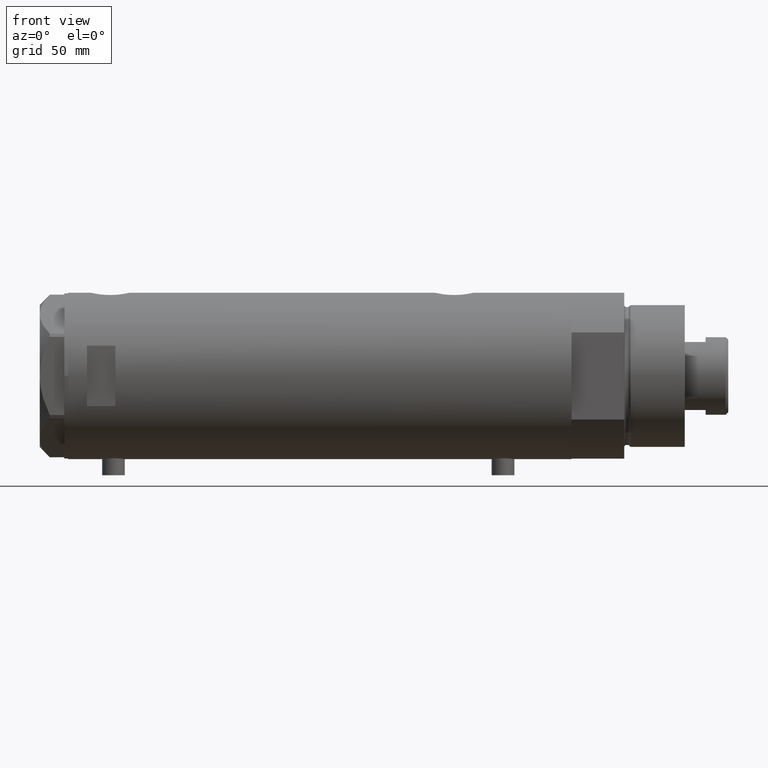
[diagram: clean part render]
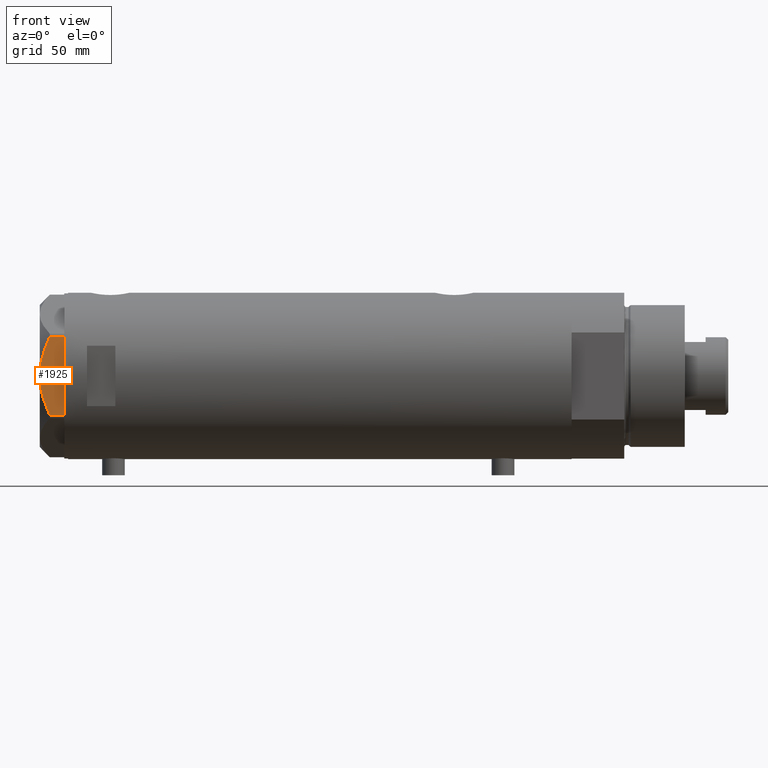
[diagram: same view with one face highlighted and labeled with its STEP entity id]
A machine part, front view. The second image highlights one B-rep face of the part: STEP entity #1925.
In plain terms, the highlighted planar face has unit normal (-0, 1, 0).
Its self-contained STEP definition (entity closure, byte-faithful):
#157 = CARTESIAN_POINT ( 'NONE',  ( -37.75000000000000711, 20.67497266190837024, 0.000000000000000000 ) ) ;
#159 = CARTESIAN_POINT ( 'NONE',  ( -37.74999999999999289, -20.67497266190837379, 0.000000000000000000 ) ) ;
#297 = CARTESIAN_POINT ( 'NONE',  ( -37.74999999999999289, -12.34877760086739862, 11.06613894200179260 ) ) ;
#411 = CARTESIAN_POINT ( 'NONE',  ( -37.74999999999999289, 11.46926194450821690, 11.30493988086503521 ) ) ;
#456 = CARTESIAN_POINT ( 'NONE',  ( -37.75000000000000711, 20.67497266190838090, 7.709124142616995634 ) ) ;
#588 = VECTOR ( 'NONE', #884, 1000.000000000000000 ) ;
#681 = CARTESIAN_POINT ( 'NONE',  ( -37.75000000000000000, -8.905753572404320195, 11.99914237172014886 ) ) ;
#738 = CARTESIAN_POINT ( 'NONE',  ( -37.75000000000000000, 7.143641079404827288, 12.47474846747316946 ) ) ;
#758 = DIRECTION ( 'NONE',  ( 1.000000000000000000, 3.183713056926429451E-16, -0.000000000000000000 ) ) ;
#781 = DIRECTION ( 'NONE',  ( -3.183713056926429451E-16, 1.000000000000000000, 0.000000000000000000 ) ) ;
#794 = LINE ( 'NONE', #4034, #1728 ) ;
#884 = DIRECTION ( 'NONE',  ( 0.000000000000000000, 0.000000000000000000, -1.000000000000000000 ) ) ;
#898 = EDGE_CURVE ( 'NONE', #1537, #1135, #3005, .T. ) ;
#914 = CARTESIAN_POINT ( 'NONE',  ( -37.75000000000000000, -1.201851678989727067E-14, 13.00000000000000000 ) ) ;
#927 = CARTESIAN_POINT ( 'NONE',  ( -37.75000000000000711, 20.67497266190837024, 13.00000000000000000 ) ) ;
#1011 = VERTEX_POINT ( 'NONE', #159 ) ;
#1035 = CARTESIAN_POINT ( 'NONE',  ( -37.75000000000000000, -4.503994958793054337, 12.74237531377022670 ) ) ;
#1121 = LINE ( 'NONE', #4332, #1799 ) ;
#1135 = VERTEX_POINT ( 'NONE', #2335 ) ;
#1143 = CARTESIAN_POINT ( 'NONE',  ( -37.74999999999999289, 14.04433099034388199, 10.48027127384610857 ) ) ;
#1152 = CARTESIAN_POINT ( 'NONE',  ( -37.75000000000000711, 21.79497266190837124, 13.00000000000000000 ) ) ;
#1172 = DIRECTION ( 'NONE',  ( 0.000000000000000000, 0.000000000000000000, 1.000000000000000000 ) ) ;
#1275 = LINE ( 'NONE', #927, #588 ) ;
#1372 = EDGE_CURVE ( 'NONE', #3344, #1011, #794, .T. ) ;
#1417 = CARTESIAN_POINT ( 'NONE',  ( -37.75000000000000000, -19.05362936076134517, 8.470554105526115762 ) ) ;
#1537 = VERTEX_POINT ( 'NONE', #914 ) ;
#1669 = B_SPLINE_CURVE_WITH_KNOTS ( 'NONE', 3,
 ( #456, #4358, #3572, #3899, #1143, #2925, #411, #738, #2512, #1804 ),
 .UNSPECIFIED., .F., .F.,
 ( 4, 2, 2, 2, 4 ),
 ( 0.05601050456479945983, 0.06138217239161374017, 0.06406800630502088034, 0.06675384021842802051, 0.07749717587205659508 ),
 .UNSPECIFIED. ) ;
#1699 = CARTESIAN_POINT ( 'NONE',  ( -37.75000000000000000, -19.86857906850810096, 8.096480699986589258 ) ) ;
#1728 = VECTOR ( 'NONE', #3342, 1000.000000000000000 ) ;
#1734 = CARTESIAN_POINT ( 'NONE',  ( -37.75000000000000000, -1.811728074765795338, 12.96720910498919999 ) ) ;
#1799 = VECTOR ( 'NONE', #1172, 1000.000000000000000 ) ;
#1804 = CARTESIAN_POINT ( 'NONE',  ( -37.75000000000000000, -1.201851678989727067E-14, 13.00000000000000000 ) ) ;
#1919 = ORIENTED_EDGE ( 'NONE', *, *, #4128, .T. ) ;
#1925 = ADVANCED_FACE ( 'NONE', ( #2532 ), #4315, .F. ) ;
#1997 = EDGE_CURVE ( 'NONE', #2253, #1537, #1669, .T. ) ;
#1999 = EDGE_CURVE ( 'NONE', #1011, #1135, #1121, .T. ) ;
#2085 = CARTESIAN_POINT ( 'NONE',  ( -37.74999999999999289, -16.56731140591524110, 9.531835068628826235 ) ) ;
#2107 = CARTESIAN_POINT ( 'NONE',  ( -37.74999999999999289, -14.04742653794399132, 10.50092616350622698 ) ) ;
#2253 = VERTEX_POINT ( 'NONE', #3154 ) ;
#2255 = ORIENTED_EDGE ( 'NONE', *, *, #1372, .T. ) ;
#2335 = CARTESIAN_POINT ( 'NONE',  ( -37.74999999999999289, -20.67497266190838090, 7.709124142616975206 ) ) ;
#2512 = CARTESIAN_POINT ( 'NONE',  ( -37.75000000000000711, 3.615248338761639868, 13.00000000000000355 ) ) ;
#2532 = FACE_OUTER_BOUND ( 'NONE', #3340, .T. ) ;
#2594 = ORIENTED_EDGE ( 'NONE', *, *, #898, .F. ) ;
#2925 = CARTESIAN_POINT ( 'NONE',  ( -37.74999999999999289, 12.33018559404073855, 11.04557586999680474 ) ) ;
#3005 = B_SPLINE_CURVE_WITH_KNOTS ( 'NONE', 3,
 ( #3460, #3829, #1734, #4291, #1035, #3971, #681, #297, #2107, #2085, #3166, #1417, #1699, #4525 ),
 .UNSPECIFIED., .F., .F.,
 ( 4, 2, 2, 2, 2, 2, 4 ),
 ( 0.07749717587205659508, 0.08017617902235898986, 0.08285518217266138463, 0.08821318847326617418, 0.09357119477387096373, 0.09625019792417334463, 0.09892920107447573941 ),
 .UNSPECIFIED. ) ;
#3154 = CARTESIAN_POINT ( 'NONE',  ( -37.75000000000000711, 20.67497266190838090, 7.709124142616995634 ) ) ;
#3166 = CARTESIAN_POINT ( 'NONE',  ( -37.75000000000000000, -17.40390235304479205, 9.187919079516763787 ) ) ;
#3340 = EDGE_LOOP ( 'NONE', ( #3347, #1919, #2255, #3875, #2594 ) ) ;
#3342 = DIRECTION ( 'NONE',  ( 3.183713056926429451E-16, -1.000000000000000000, 0.000000000000000000 ) ) ;
#3344 = VERTEX_POINT ( 'NONE', #157 ) ;
#3347 = ORIENTED_EDGE ( 'NONE', *, *, #1997, .F. ) ;
#3460 = CARTESIAN_POINT ( 'NONE',  ( -37.75000000000000000, -1.201851678989727067E-14, 13.00000000000000000 ) ) ;
#3572 = CARTESIAN_POINT ( 'NONE',  ( -37.75000000000000000, 17.42329546264825524, 9.202188366597436442 ) ) ;
#3655 = AXIS2_PLACEMENT_3D ( 'NONE', #1152, #758, #781 ) ;
#3829 = CARTESIAN_POINT ( 'NONE',  ( -37.75000000000000000, -0.9015134592203577490, 13.00000000000000178 ) ) ;
#3875 = ORIENTED_EDGE ( 'NONE', *, *, #1999, .T. ) ;
#3899 = CARTESIAN_POINT ( 'NONE',  ( -37.75000000000000000, 14.89874562435961103, 10.17375260246623903 ) ) ;
#3971 = CARTESIAN_POINT ( 'NONE',  ( -37.74999999999999289, -7.161343005612803125, 12.36677985830371895 ) ) ;
#4034 = CARTESIAN_POINT ( 'NONE',  ( -37.75000000000000711, 21.79497266190837124, 0.000000000000000000 ) ) ;
#4128 = EDGE_CURVE ( 'NONE', #2253, #3344, #1275, .T. ) ;
#4291 = CARTESIAN_POINT ( 'NONE',  ( -37.74999999999998579, -3.611424898442238351, 12.83826937481876662 ) ) ;
#4315 = PLANE ( 'NONE',  #3655 ) ;
#4332 = CARTESIAN_POINT ( 'NONE',  ( -37.74999999999999289, -20.67497266190837379, 13.00000000000000000 ) ) ;
#4358 = CARTESIAN_POINT ( 'NONE',  ( -37.75000000000001421, 19.06473524669327446, 8.482612457517163307 ) ) ;
#4525 = CARTESIAN_POINT ( 'NONE',  ( -37.74999999999999289, -20.67497266190838090, 7.709124142616975206 ) ) ;